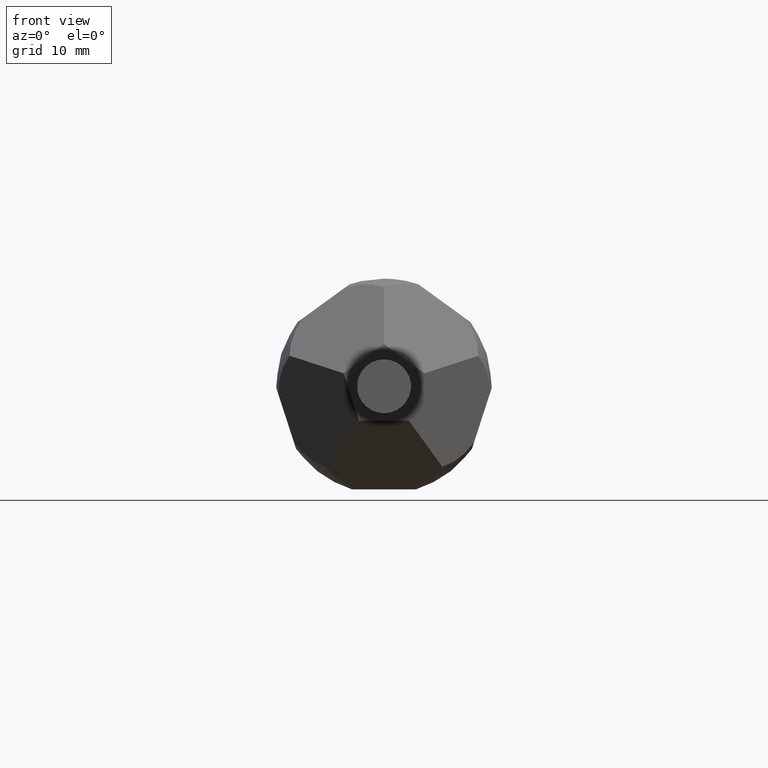
[diagram: clean part render]
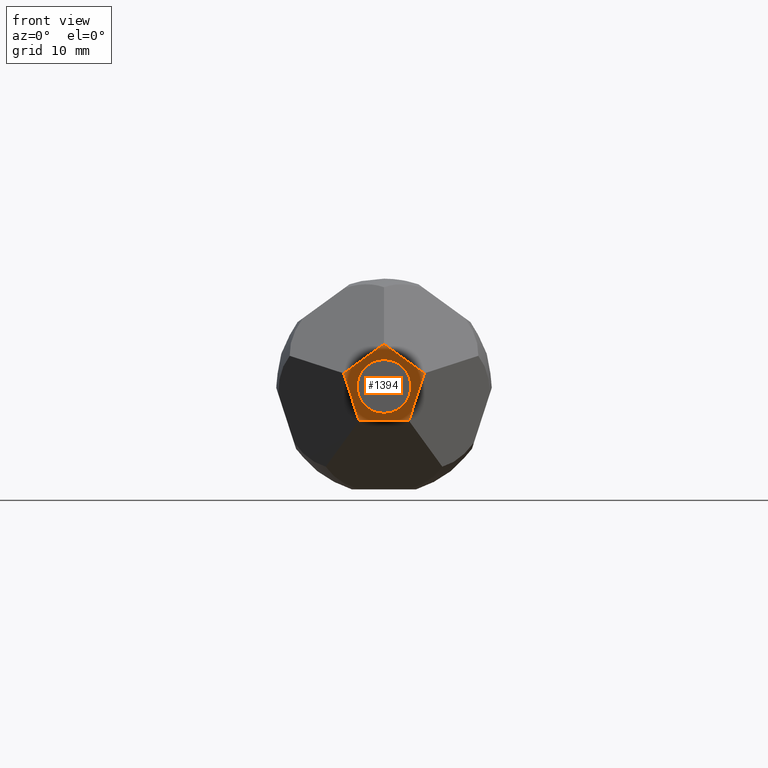
[diagram: same view with one face highlighted and labeled with its STEP entity id]
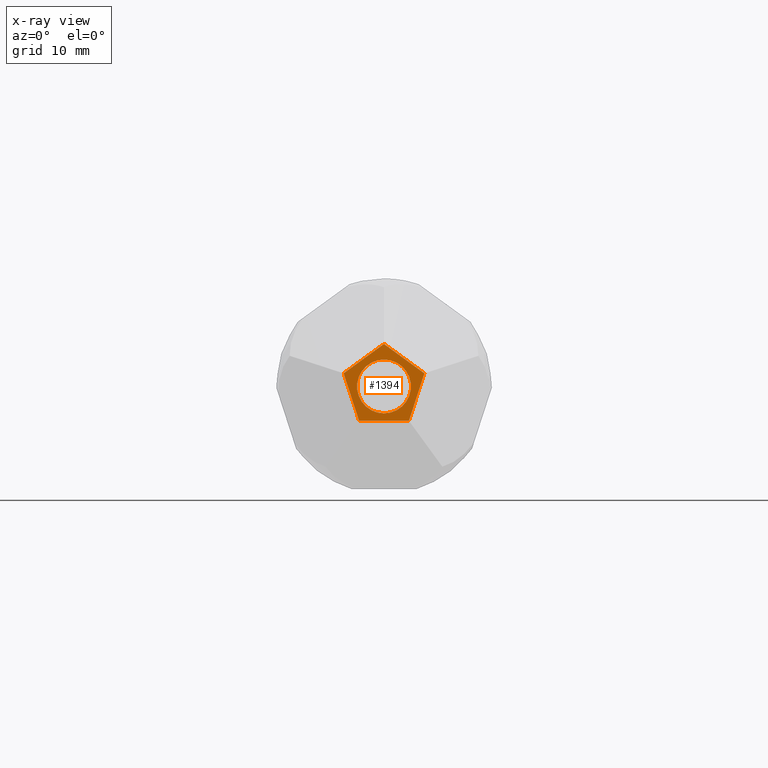
[diagram: x-ray of the same camera — body ghosted, the highlighted face saturated]
A machine part, front view. The second image highlights one B-rep face of the part: STEP entity #1394.
The next image is the same camera in x-ray: the body ghosted, the highlighted face saturated — about 0% of this face is hidden behind the body in this view.
In plain terms, the highlighted planar face has unit normal (0, -1, 0).
Its self-contained STEP definition (entity closure, byte-faithful):
#267 = VECTOR ( 'NONE', #6054, 1000.000000000000114 ) ;
#589 = AXIS2_PLACEMENT_3D ( 'NONE', #11066, #1905, #8347 ) ;
#893 = LINE ( 'NONE', #7052, #11722 ) ;
#1084 = EDGE_CURVE ( 'NONE', #4359, #4359, #11865, .T. ) ;
#1394 = ADVANCED_FACE ( 'NONE', ( #2781, #8406 ), #5572, .T. ) ;
#1400 = DIRECTION ( 'NONE',  ( -0.3090169943749473402, -0.000000000000000000, -0.9510565162951536422 ) ) ;
#1661 = LINE ( 'NONE', #8786, #11466 ) ;
#1861 = ORIENTED_EDGE ( 'NONE', *, *, #10178, .F. ) ;
#1884 = VERTEX_POINT ( 'NONE', #10567 ) ;
#1905 = DIRECTION ( 'NONE',  ( 0.000000000000000000, -1.000000000000000000, 0.000000000000000000 ) ) ;
#1929 = DIRECTION ( 'NONE',  ( -1.000000000000000000, 0.000000000000000000, 1.136972394929232005E-16 ) ) ;
#2038 = AXIS2_PLACEMENT_3D ( 'NONE', #6776, #6862, #6902 ) ;
#2304 = ORIENTED_EDGE ( 'NONE', *, *, #5441, .F. ) ;
#2437 = EDGE_CURVE ( 'NONE', #8562, #1884, #893, .T. ) ;
#2781 = FACE_BOUND ( 'NONE', #9915, .T. ) ;
#2972 = ORIENTED_EDGE ( 'NONE', *, *, #2437, .F. ) ;
#3079 = VECTOR ( 'NONE', #6383, 1000.000000000000114 ) ;
#3542 = VERTEX_POINT ( 'NONE', #7344 ) ;
#3855 = CARTESIAN_POINT ( 'NONE',  ( -7.628696544056289497, -9.000000000000000000, -3.500000000000004885 ) ) ;
#4117 = CARTESIAN_POINT ( 'NONE',  ( 0.000000000000000000, -9.000000000000000000, -2.750000000000000000 ) ) ;
#4276 = CARTESIAN_POINT ( 'NONE',  ( 4.114496766047321508, -9.000000000000000000, 1.336881039375372282 ) ) ;
#4359 = VERTEX_POINT ( 'NONE', #4117 ) ;
#5441 = EDGE_CURVE ( 'NONE', #8892, #9829, #6032, .T. ) ;
#5572 = PLANE ( 'NONE',  #589 ) ;
#5960 = DIRECTION ( 'NONE',  ( 0.8090169943749474513, 0.000000000000000000, -0.5877852522924731371 ) ) ;
#6032 = LINE ( 'NONE', #7150, #267 ) ;
#6054 = DIRECTION ( 'NONE',  ( 0.8090169943749474513, 0.000000000000000000, 0.5877852522924731371 ) ) ;
#6081 = ORIENTED_EDGE ( 'NONE', *, *, #9696, .F. ) ;
#6383 = DIRECTION ( 'NONE',  ( -0.3090169943749473402, 0.000000000000000000, 0.9510565162951535312 ) ) ;
#6404 = LINE ( 'NONE', #7998, #3079 ) ;
#6776 = CARTESIAN_POINT ( 'NONE',  ( 0.000000000000000000, -9.000000000000000000, 0.000000000000000000 ) ) ;
#6862 = DIRECTION ( 'NONE',  ( 0.000000000000000000, -1.000000000000000000, 0.000000000000000000 ) ) ;
#6902 = DIRECTION ( 'NONE',  ( 0.000000000000000000, 0.000000000000000000, -1.000000000000000000 ) ) ;
#7052 = CARTESIAN_POINT ( 'NONE',  ( 0.9713009299902224392, -9.000000000000000000, -8.336881039375372282 ) ) ;
#7150 = CARTESIAN_POINT ( 'NONE',  ( 4.114496766047307297, -9.000000000000000000, 7.315594803123163459 ) ) ;
#7344 = CARTESIAN_POINT ( 'NONE',  ( -2.542898848018768643, -9.000000000000000000, -3.500000000000005329 ) ) ;
#7998 = CARTESIAN_POINT ( 'NONE',  ( -5.686094684075865935, -9.000000000000000000, 6.173762078750732130 ) ) ;
#8130 = CARTESIAN_POINT ( 'NONE',  ( 3.216794516627720140E-15, -9.000000000000000000, 4.326237921249272311 ) ) ;
#8168 = VECTOR ( 'NONE', #1929, 1000.000000000000000 ) ;
#8347 = DIRECTION ( 'NONE',  ( 0.000000000000000000, 0.000000000000000000, 1.000000000000000000 ) ) ;
#8352 = EDGE_CURVE ( 'NONE', #1884, #3542, #11343, .T. ) ;
#8406 = FACE_OUTER_BOUND ( 'NONE', #10529, .T. ) ;
#8562 = VERTEX_POINT ( 'NONE', #4276 ) ;
#8774 = CARTESIAN_POINT ( 'NONE',  ( -4.114496766047319731, -9.000000000000000000, 1.336881039375369173 ) ) ;
#8786 = CARTESIAN_POINT ( 'NONE',  ( 8.228993532094627028, -9.000000000000000000, -1.652475842498518643 ) ) ;
#8892 = VERTEX_POINT ( 'NONE', #8774 ) ;
#9696 = EDGE_CURVE ( 'NONE', #9829, #8562, #1661, .T. ) ;
#9829 = VERTEX_POINT ( 'NONE', #8130 ) ;
#9915 = EDGE_LOOP ( 'NONE', ( #10576 ) ) ;
#10178 = EDGE_CURVE ( 'NONE', #3542, #8892, #6404, .T. ) ;
#10529 = EDGE_LOOP ( 'NONE', ( #6081, #2304, #1861, #10977, #2972 ) ) ;
#10567 = CARTESIAN_POINT ( 'NONE',  ( 2.542898848018769975, -9.000000000000000000, -3.500000000000006217 ) ) ;
#10576 = ORIENTED_EDGE ( 'NONE', *, *, #1084, .F. ) ;
#10977 = ORIENTED_EDGE ( 'NONE', *, *, #8352, .F. ) ;
#11066 = CARTESIAN_POINT ( 'NONE',  ( 0.000000000000000000, -9.000000000000000000, 0.000000000000000000 ) ) ;
#11343 = LINE ( 'NONE', #3855, #8168 ) ;
#11466 = VECTOR ( 'NONE', #5960, 1000.000000000000114 ) ;
#11722 = VECTOR ( 'NONE', #1400, 1000.000000000000000 ) ;
#11865 = CIRCLE ( 'NONE', #2038, 2.750000000000000000 ) ;